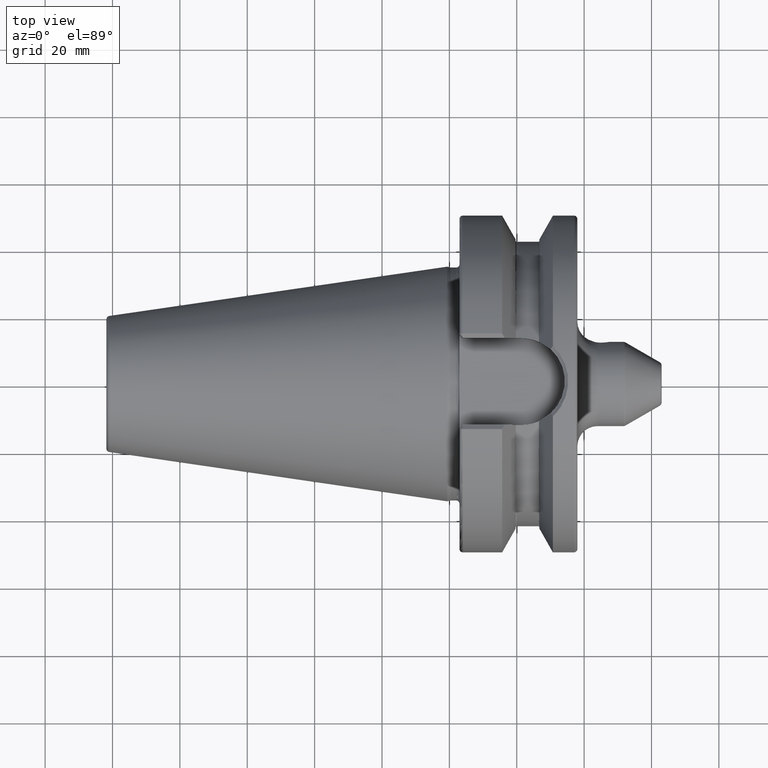
[diagram: clean part render]
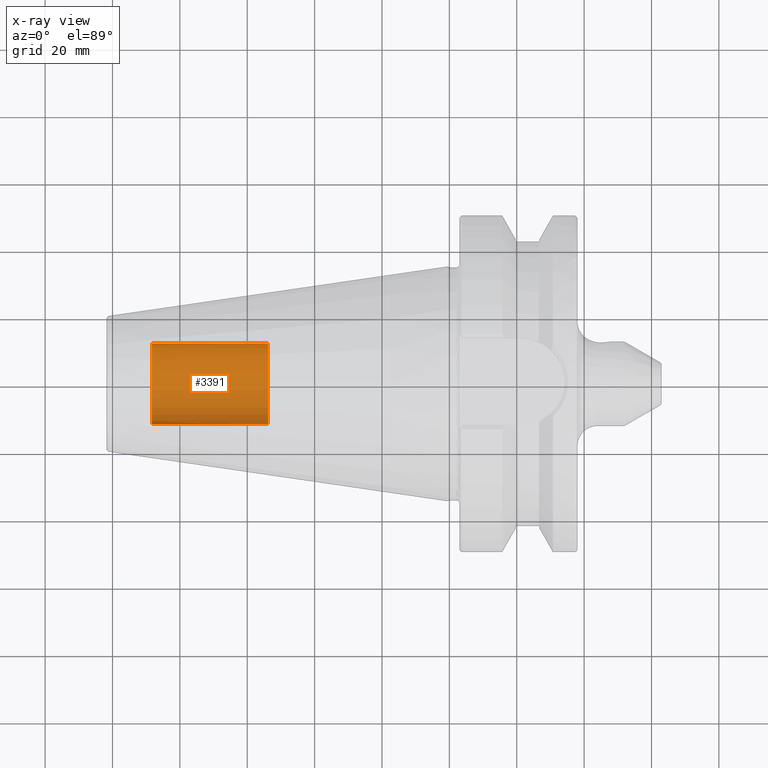
[diagram: x-ray — body ghosted, one internal face saturated and labeled with its STEP entity id]
A machine part, top view, then the same camera in x-ray: the body is ghosted and one INTERNAL B-rep face — a face not visible from any outside direction — is saturated and labeled: STEP entity #3391.
In plain terms, the highlighted cylindrical surface (partial cylindrical patch) has radius 12.0032 mm, axis along (1, 0, 0).
Its self-contained STEP definition (entity closure, byte-faithful):
#3326=CARTESIAN_POINT('',(-8.835E1,0.E0,0.E0));
#3327=DIRECTION('',(-1.E0,0.E0,0.E0));
#3328=DIRECTION('',(0.E0,1.E0,0.E0));
#3329=AXIS2_PLACEMENT_3D('',#3326,#3327,#3328);
#3331=DIRECTION('',(1.E0,0.E0,0.E0));
#3332=VECTOR('',#3331,3.455E1);
#3333=CARTESIAN_POINT('',(-8.835E1,-1.200325E1,0.E0));
#3334=LINE('',#3333,#3332);
#3340=DIRECTION('',(1.E0,0.E0,0.E0));
#3341=VECTOR('',#3340,3.455E1);
#3342=CARTESIAN_POINT('',(-8.835E1,1.200325E1,0.E0));
#3343=LINE('',#3342,#3341);
#3349=CARTESIAN_POINT('',(-5.38E1,0.E0,0.E0));
#3350=DIRECTION('',(1.E0,0.E0,0.E0));
#3351=DIRECTION('',(0.E0,-1.E0,0.E0));
#3352=AXIS2_PLACEMENT_3D('',#3349,#3350,#3351);
#3364=CARTESIAN_POINT('',(-8.835E1,1.200325E1,0.E0));
#3365=CARTESIAN_POINT('',(-8.835E1,-1.200325E1,0.E0));
#3366=VERTEX_POINT('',#3364);
#3367=VERTEX_POINT('',#3365);
#3368=CARTESIAN_POINT('',(-5.38E1,1.200325E1,0.E0));
#3369=CARTESIAN_POINT('',(-5.38E1,-1.200325E1,0.E0));
#3370=VERTEX_POINT('',#3368);
#3371=VERTEX_POINT('',#3369);
#3376=CARTESIAN_POINT('',(-8.835E1,0.E0,0.E0));
#3377=DIRECTION('',(1.E0,0.E0,0.E0));
#3378=DIRECTION('',(0.E0,1.E0,0.E0));
#3379=AXIS2_PLACEMENT_3D('',#3376,#3377,#3378);
#3380=CYLINDRICAL_SURFACE('',#3379,1.200325E1);
#3382=ORIENTED_EDGE('',*,*,#3381,.T.);
#3384=ORIENTED_EDGE('',*,*,#3383,.T.);
#3386=ORIENTED_EDGE('',*,*,#3385,.T.);
#3388=ORIENTED_EDGE('',*,*,#3387,.F.);
#3389=EDGE_LOOP('',(#3382,#3384,#3386,#3388));
#3390=FACE_OUTER_BOUND('',#3389,.F.);
#3391=ADVANCED_FACE('',(#3390),#3380,.T.);
#3330=CIRCLE('',#3329,1.200325E1);
#3353=CIRCLE('',#3352,1.200325E1);
#3381=EDGE_CURVE('',#3366,#3367,#3330,.T.);
#3383=EDGE_CURVE('',#3367,#3371,#3334,.T.);
#3385=EDGE_CURVE('',#3371,#3370,#3353,.T.);
#3387=EDGE_CURVE('',#3366,#3370,#3343,.T.);